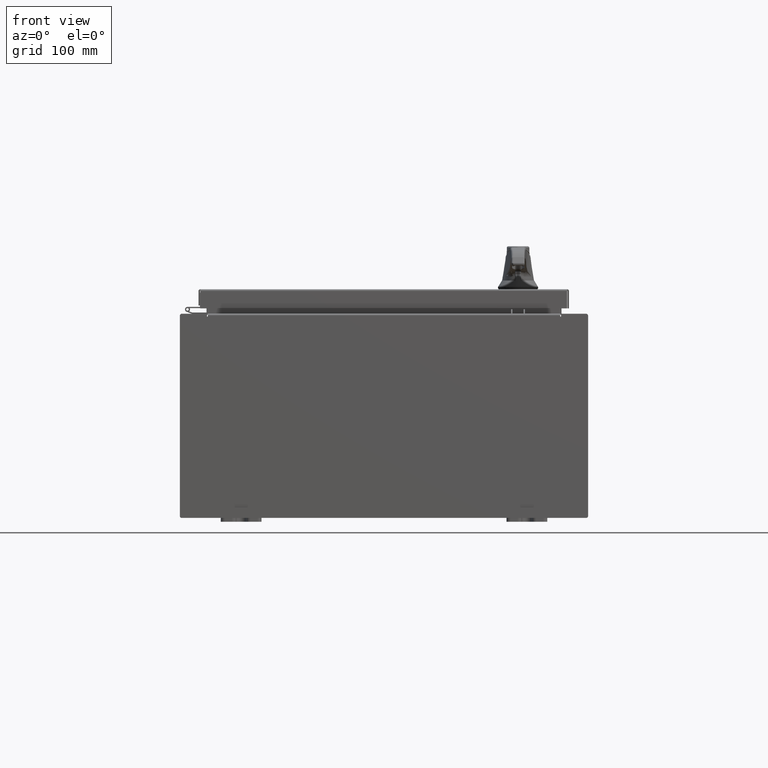
[diagram: clean part render]
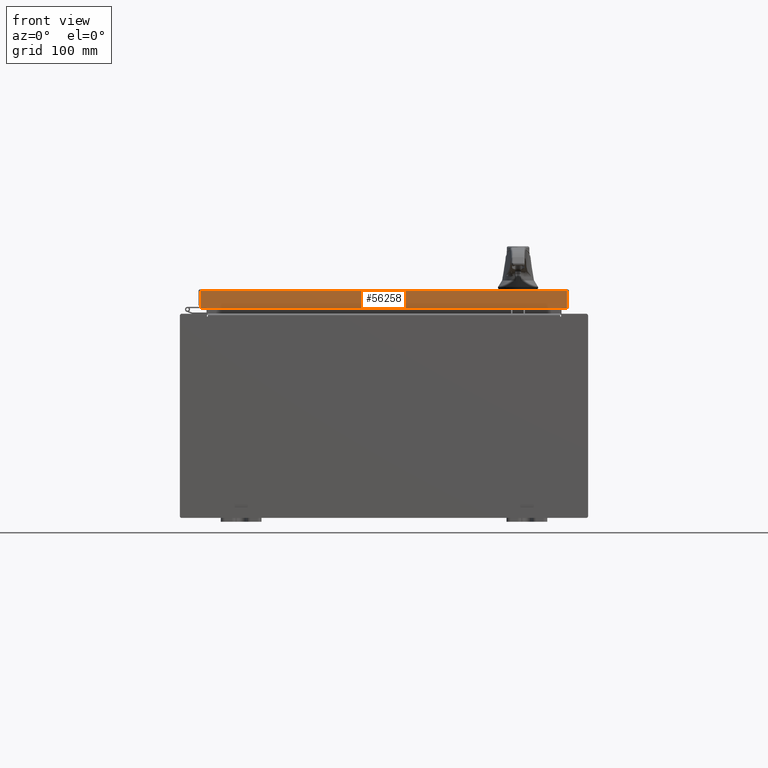
[diagram: same view with one face highlighted and labeled with its STEP entity id]
A machine part, front view. The second image highlights one B-rep face of the part: STEP entity #56258.
In plain terms, the highlighted planar face has unit normal (-0, 1, -0).
Its self-contained STEP definition (entity closure, byte-faithful):
#3543 = DIRECTION ( 'NONE',  ( -1.203722403024573700E-016, 1.000000000000000000, -2.532419924601866100E-015 ) ) ;
#4056 = CARTESIAN_POINT ( 'NONE',  ( 8.989157864376267100, -11.09400000000000100, -0.08769999999999898700 ) ) ;
#5711 = VERTEX_POINT ( 'NONE', #53889 ) ;
#22719 = VECTOR ( 'NONE', #58777, 39.37007874015748100 ) ;
#23060 = CARTESIAN_POINT ( 'NONE',  ( -8.989157864376267100, -11.09400000000000700, -0.9376999999999976500 ) ) ;
#24424 = LINE ( 'NONE', #60723, #91516 ) ;
#25565 = DIRECTION ( 'NONE',  ( -0.0000000000000000000, -2.532419924601866100E-015, -1.000000000000000000 ) ) ;
#28795 = EDGE_CURVE ( 'NONE', #5711, #57935, #49140, .T. ) ;
#30224 = ORIENTED_EDGE ( 'NONE', *, *, #28795, .F. ) ;
#35248 = DIRECTION ( 'NONE',  ( 1.000000000000000000, 1.203722403024570700E-016, -1.203722403024570700E-016 ) ) ;
#38257 = CARTESIAN_POINT ( 'NONE',  ( 9.077999999999999400, -11.09400000000000300, -0.9376999999999997600 ) ) ;
#39811 = EDGE_CURVE ( 'NONE', #75655, #57935, #113271, .T. ) ;
#40676 = EDGE_CURVE ( 'NONE', #75655, #61009, #69124, .T. ) ;
#44101 = ORIENTED_EDGE ( 'NONE', *, *, #39811, .T. ) ;
#49140 = LINE ( 'NONE', #38257, #93072 ) ;
#49919 = CARTESIAN_POINT ( 'NONE',  ( -8.989157864376267100, -11.09400000000000100, 2.835548029954469300E-014 ) ) ;
#51095 = EDGE_LOOP ( 'NONE', ( #112468, #44101, #30224, #103510 ) ) ;
#51322 = VECTOR ( 'NONE', #35248, 39.37007874015748100 ) ;
#53889 = CARTESIAN_POINT ( 'NONE',  ( 8.989157864376267100, -11.09400000000000300, -0.9376999999999997600 ) ) ;
#54518 = FACE_OUTER_BOUND ( 'NONE', #51095, .T. ) ;
#55944 = CARTESIAN_POINT ( 'NONE',  ( 1.335409633915462200E-015, -11.09400000000000100, 2.835548029954469000E-014 ) ) ;
#56258 = ADVANCED_FACE ( 'NONE', ( #54518 ), #99673, .F. ) ;
#57935 = VERTEX_POINT ( 'NONE', #23060 ) ;
#58777 = DIRECTION ( 'NONE',  ( 0.0000000000000000000, -2.532419924601866100E-015, -1.000000000000000000 ) ) ;
#60723 = CARTESIAN_POINT ( 'NONE',  ( 8.989157864376267100, -11.09400000000000100, -0.07469999999999980800 ) ) ;
#61009 = VERTEX_POINT ( 'NONE', #4056 ) ;
#64707 = DIRECTION ( 'NONE',  ( 0.0000000000000000000, 2.532419924601866100E-015, 1.000000000000000000 ) ) ;
#69124 = LINE ( 'NONE', #87746, #51322 ) ;
#75655 = VERTEX_POINT ( 'NONE', #79727 ) ;
#79727 = CARTESIAN_POINT ( 'NONE',  ( -8.989157864376267100, -11.09400000000000100, -0.08769999999999791900 ) ) ;
#84991 = AXIS2_PLACEMENT_3D ( 'NONE', #55944, #3543, #64707 ) ;
#87746 = CARTESIAN_POINT ( 'NONE',  ( 9.077999999999999400, -11.09400000000000100, -0.08770000000000008300 ) ) ;
#91516 = VECTOR ( 'NONE', #25565, 39.37007874015748100 ) ;
#93072 = VECTOR ( 'NONE', #108454, 39.37007874015748100 ) ;
#99673 = PLANE ( 'NONE',  #84991 ) ;
#102487 = EDGE_CURVE ( 'NONE', #61009, #5711, #24424, .T. ) ;
#103510 = ORIENTED_EDGE ( 'NONE', *, *, #102487, .F. ) ;
#108454 = DIRECTION ( 'NONE',  ( -1.000000000000000000, -1.203722403024570700E-016, 1.203722403024570700E-016 ) ) ;
#112468 = ORIENTED_EDGE ( 'NONE', *, *, #40676, .F. ) ;
#113271 = LINE ( 'NONE', #49919, #22719 ) ;